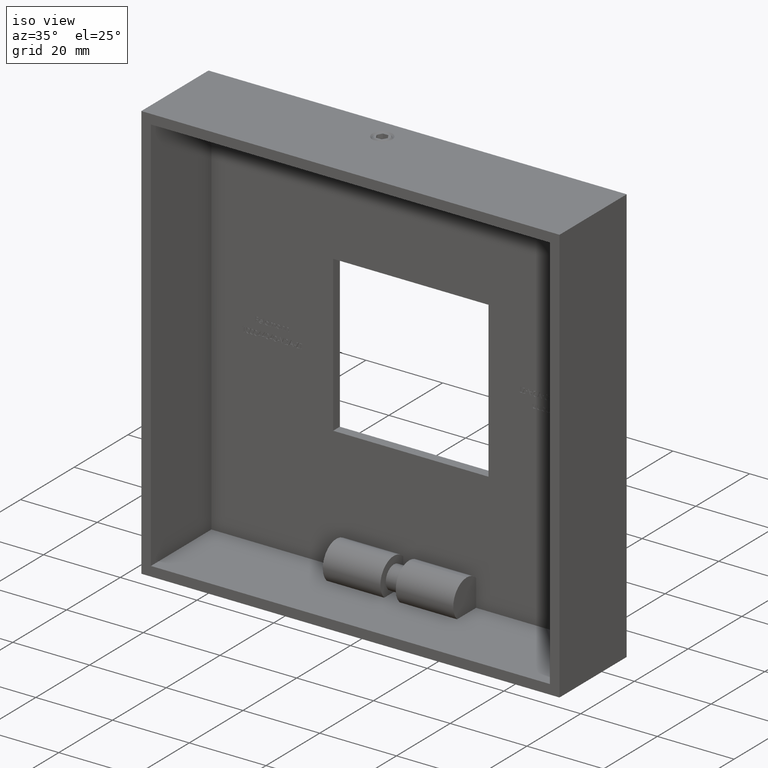
[diagram: clean part render]
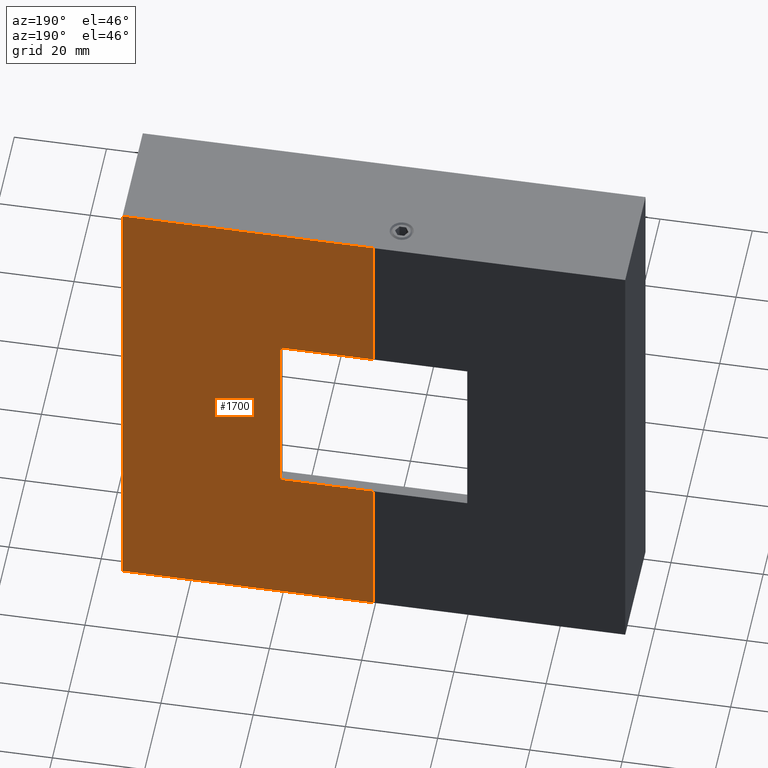
[diagram: tour spotlight — one face highlighted and labeled with its STEP entity id]
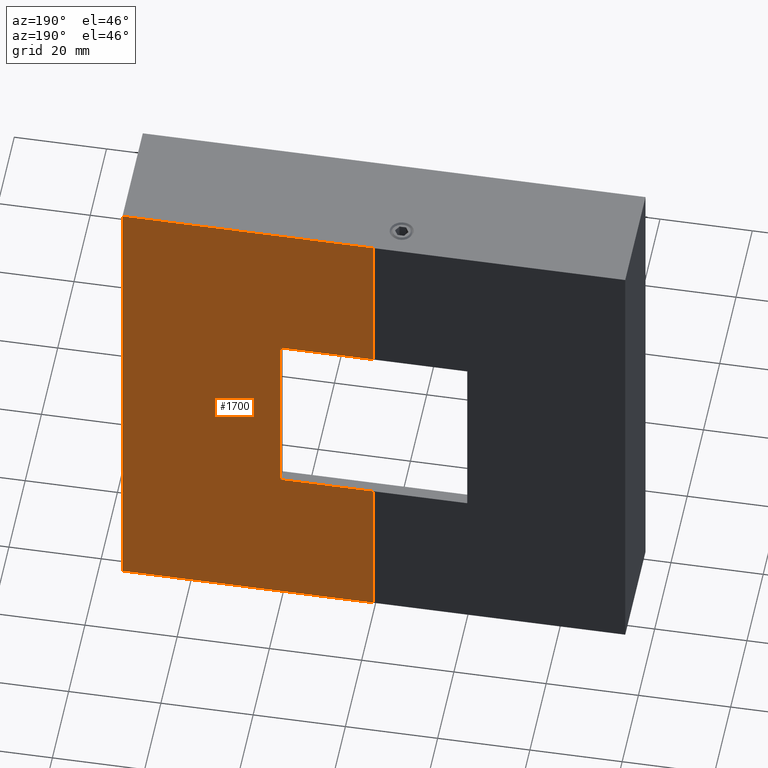
[diagram: tour spotlight — one face highlighted and labeled with its STEP entity id]
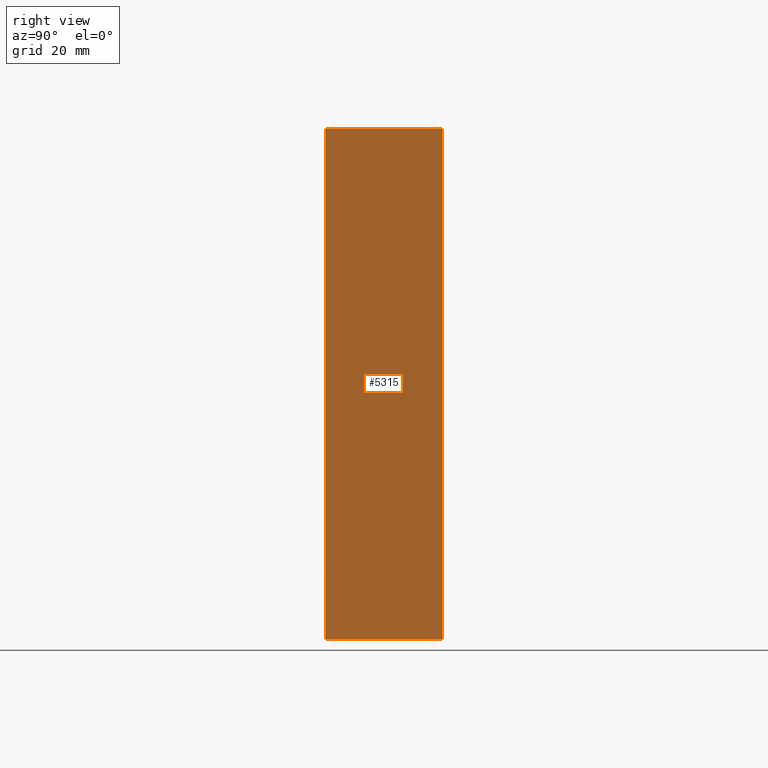
[diagram: tour spotlight — one face highlighted and labeled with its STEP entity id]
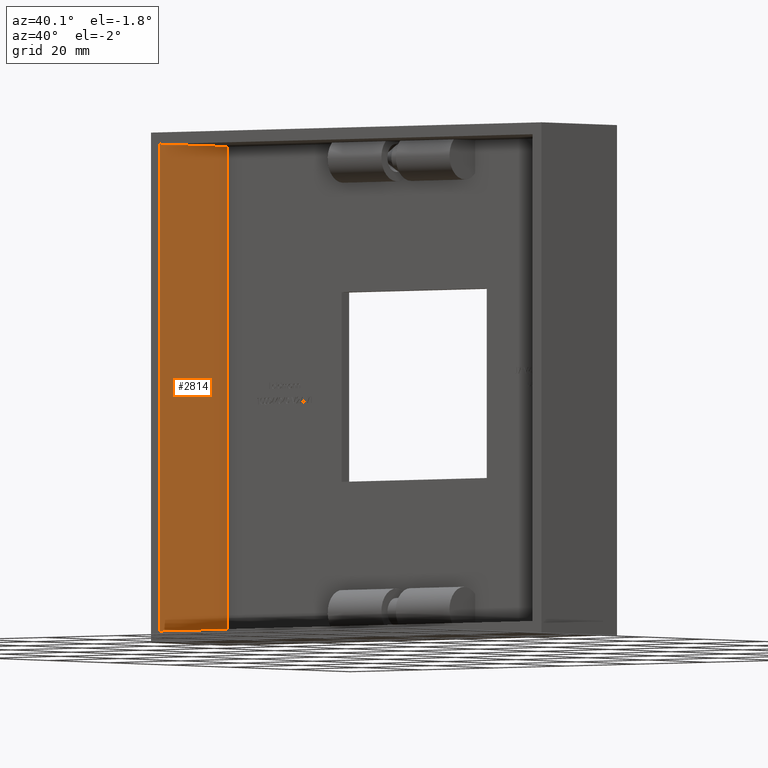
[diagram: tour spotlight — one face highlighted and labeled with its STEP entity id]
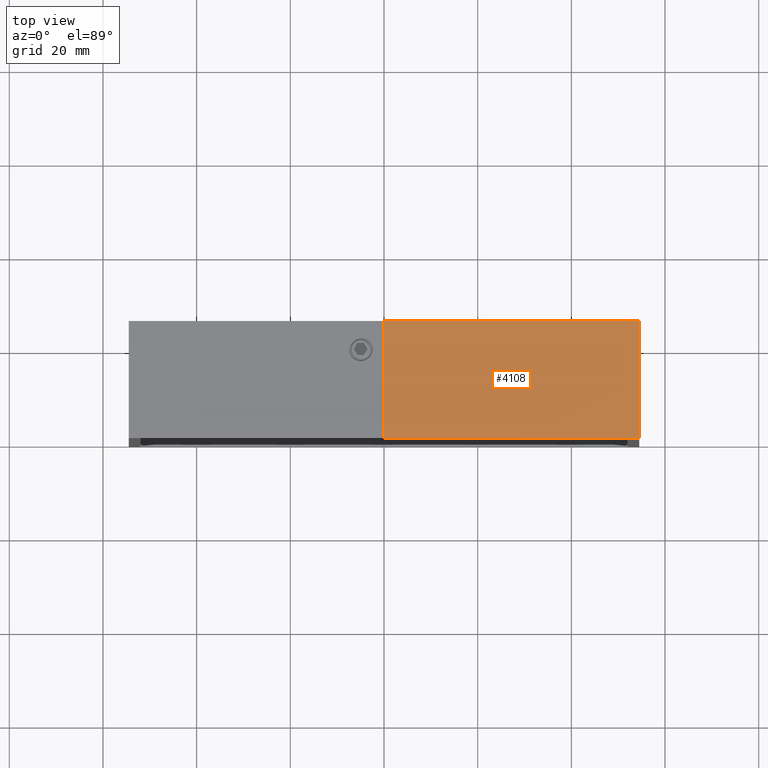
[diagram: tour spotlight — one face highlighted and labeled with its STEP entity id]
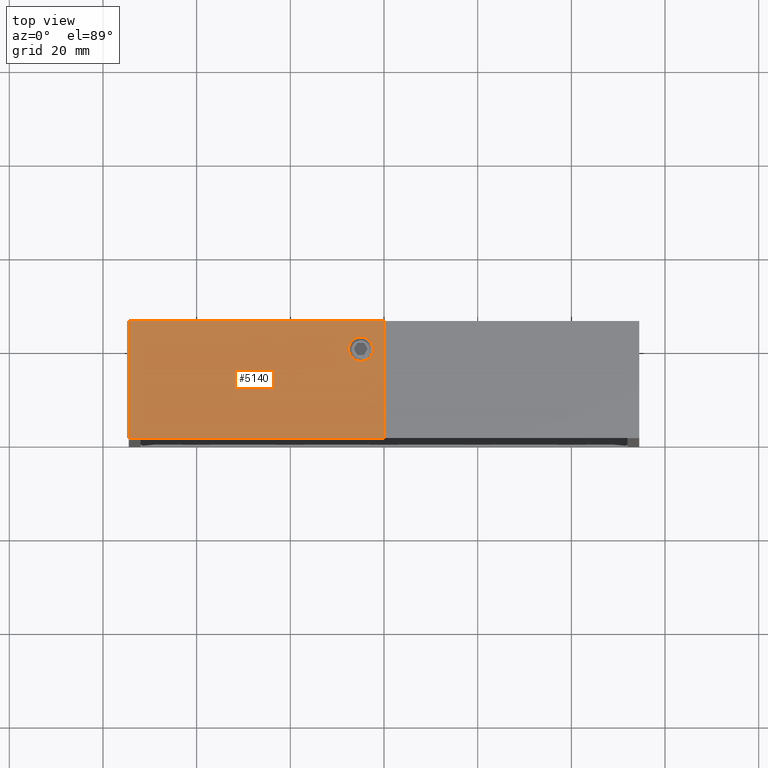
[diagram: tour spotlight — one face highlighted and labeled with its STEP entity id]
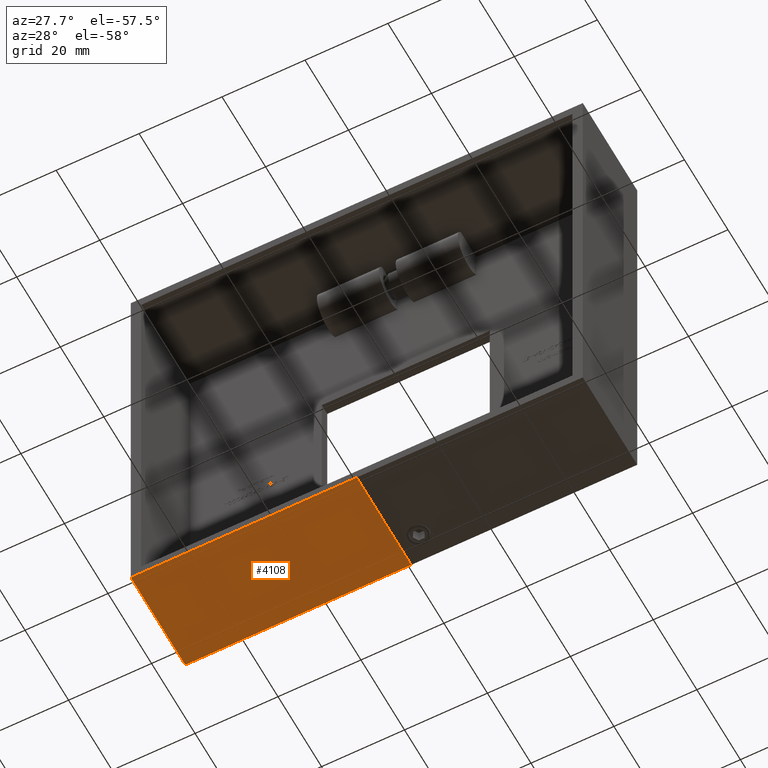
[diagram: tour spotlight — one face highlighted and labeled with its STEP entity id]
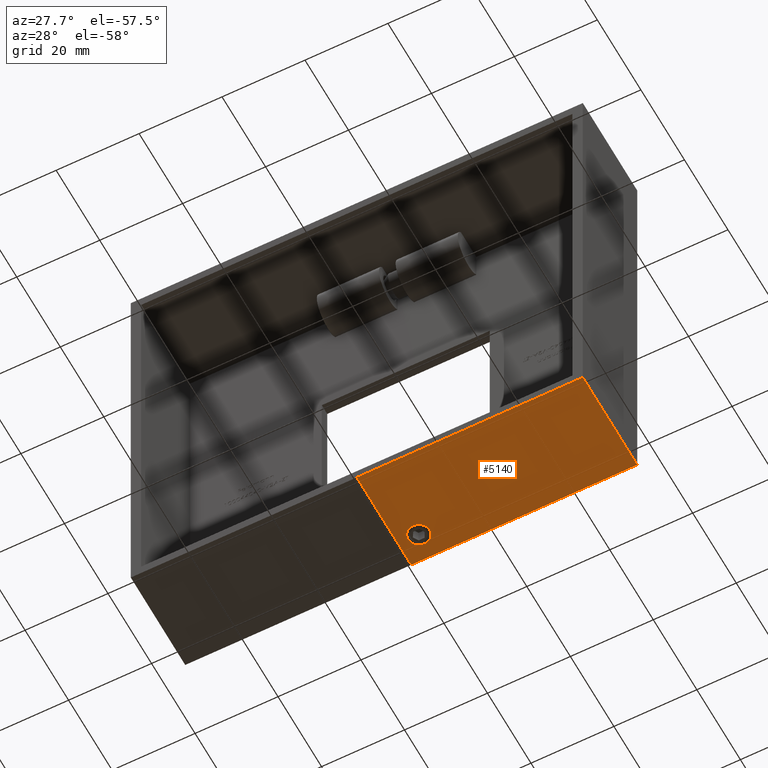
[diagram: tour spotlight — one face highlighted and labeled with its STEP entity id]
A machine part: a face-by-face anatomy tour. The part has 690 B-rep faces; the first image is the clean iso view, then the 8 largest visible faces are spotlighted one at a time (largest first), each with its STEP entity span.

Face 1 — auxiliary view, entity #1700. In plain terms, the highlighted planar face has unit normal (0, 1, 0).
Definition (entity closure, byte-faithful):
#919 = DIRECTION ( 'NONE',  ( -0.0000000000000000000, -0.0000000000000000000, 1.000000000000000000 ) ) ;
#1050 = LINE ( 'NONE', #5581, #15511 ) ;
#1548 = ORIENTED_EDGE ( 'NONE', *, *, #9338, .F. ) ;
#1700 = ADVANCED_FACE ( 'NONE', ( #14483 ), #12961, .T. ) ;
#1815 = EDGE_CURVE ( 'NONE', #2937, #14957, #13651, .T. ) ;
#1887 = EDGE_CURVE ( 'NONE', #8291, #8773, #1050, .T. ) ;
#2003 = CARTESIAN_POINT ( 'NONE',  ( 27.25000000000000700, 25.00000000000000000, 54.49999999999999300 ) ) ;
#2162 = VERTEX_POINT ( 'NONE', #4155 ) ;
#2281 = CARTESIAN_POINT ( 'NONE',  ( -27.24999999999999300, 25.00000000000000000, 54.49999999999999300 ) ) ;
#2524 = EDGE_LOOP ( 'NONE', ( #1548, #12939, #3815, #11636, #6954, #3567, #9335, #16981 ) ) ;
#2587 = CARTESIAN_POINT ( 'NONE',  ( -27.24999999999999300, 25.00000000000000000, 54.49999999999999300 ) ) ;
#2906 = VECTOR ( 'NONE', #12030, 1000.000000000000000 ) ;
#2937 = VERTEX_POINT ( 'NONE', #2281 ) ;
#3405 = CARTESIAN_POINT ( 'NONE',  ( 7.000000000000009800, 25.00000000000000000, 20.25000000000000400 ) ) ;
#3567 = ORIENTED_EDGE ( 'NONE', *, *, #7833, .T. ) ;
#3584 = DIRECTION ( 'NONE',  ( 0.0000000000000000000, 1.000000000000000000, 0.0000000000000000000 ) ) ;
#3628 = DIRECTION ( 'NONE',  ( -1.273191542001326800E-016, -0.0000000000000000000, -1.000000000000000000 ) ) ;
#3751 = LINE ( 'NONE', #12890, #7096 ) ;
#3812 = DIRECTION ( 'NONE',  ( 0.0000000000000000000, -0.0000000000000000000, 1.000000000000000000 ) ) ;
#3815 = ORIENTED_EDGE ( 'NONE', *, *, #1887, .T. ) ;
#4155 = CARTESIAN_POINT ( 'NONE',  ( 27.25000000000000700, 25.00000000000000000, -20.25000000000000400 ) ) ;
#4168 = CARTESIAN_POINT ( 'NONE',  ( 47.50000000000001400, 25.00000000000000000, -20.25000000000000400 ) ) ;
#4745 = LINE ( 'NONE', #14289, #16548 ) ;
#4852 = DIRECTION ( 'NONE',  ( 1.000000000000000000, -0.0000000000000000000, -1.713307136767216600E-016 ) ) ;
#5384 = AXIS2_PLACEMENT_3D ( 'NONE', #11706, #3584, #3812 ) ;
#5581 = CARTESIAN_POINT ( 'NONE',  ( -27.25000000000000700, 25.00000000000000000, -54.50000000000000000 ) ) ;
#6442 = DIRECTION ( 'NONE',  ( 1.000000000000000000, 0.0000000000000000000, 0.0000000000000000000 ) ) ;
#6954 = ORIENTED_EDGE ( 'NONE', *, *, #1815, .T. ) ;
#7096 = VECTOR ( 'NONE', #3628, 1000.000000000000000 ) ;
#7652 = LINE ( 'NONE', #4168, #10367 ) ;
#7833 = EDGE_CURVE ( 'NONE', #14957, #10366, #3751, .T. ) ;
#8226 = EDGE_CURVE ( 'NONE', #15180, #10366, #8517, .T. ) ;
#8291 = VERTEX_POINT ( 'NONE', #15778 ) ;
#8517 = LINE ( 'NONE', #8898, #16588 ) ;
#8773 = VERTEX_POINT ( 'NONE', #12591 ) ;
#8898 = CARTESIAN_POINT ( 'NONE',  ( 47.50000000000001400, 25.00000000000000000, 20.24999999999999600 ) ) ;
#9335 = ORIENTED_EDGE ( 'NONE', *, *, #8226, .F. ) ;
#9338 = EDGE_CURVE ( 'NONE', #2162, #16205, #7652, .T. ) ;
#9575 = DIRECTION ( 'NONE',  ( -1.000000000000000000, 0.0000000000000000000, 0.0000000000000000000 ) ) ;
#9595 = CARTESIAN_POINT ( 'NONE',  ( 27.25000000000000700, 25.00000000000000000, 20.25000000000000000 ) ) ;
#10144 = CARTESIAN_POINT ( 'NONE',  ( 27.24999999999999300, 25.00000000000000000, -54.50000000000000000 ) ) ;
#10165 = VECTOR ( 'NONE', #6442, 1000.000000000000000 ) ;
#10366 = VERTEX_POINT ( 'NONE', #9595 ) ;
#10367 = VECTOR ( 'NONE', #9575, 1000.000000000000000 ) ;
#11371 = LINE ( 'NONE', #10144, #14452 ) ;
#11636 = ORIENTED_EDGE ( 'NONE', *, *, #13784, .T. ) ;
#11706 = CARTESIAN_POINT ( 'NONE',  ( 0.0000000000000000000, 25.00000000000000000, 0.0000000000000000000 ) ) ;
#12030 = DIRECTION ( 'NONE',  ( 1.273191542001326800E-016, 0.0000000000000000000, 1.000000000000000000 ) ) ;
#12591 = CARTESIAN_POINT ( 'NONE',  ( -27.25000000000000700, 25.00000000000000000, -54.50000000000000000 ) ) ;
#12890 = CARTESIAN_POINT ( 'NONE',  ( 27.24999999999999300, 25.00000000000000000, -54.50000000000000000 ) ) ;
#12939 = ORIENTED_EDGE ( 'NONE', *, *, #15594, .T. ) ;
#12961 = PLANE ( 'NONE',  #5384 ) ;
#13436 = DIRECTION ( 'NONE',  ( -1.000000000000000000, -0.0000000000000000000, -0.0000000000000000000 ) ) ;
#13651 = LINE ( 'NONE', #2587, #10165 ) ;
#13784 = EDGE_CURVE ( 'NONE', #8773, #2937, #16367, .T. ) ;
#14279 = CARTESIAN_POINT ( 'NONE',  ( 7.000000000000009800, 25.00000000000000000, -20.25000000000000400 ) ) ;
#14289 = CARTESIAN_POINT ( 'NONE',  ( 7.000000000000009800, 25.00000000000000000, 20.25000000000000400 ) ) ;
#14312 = DIRECTION ( 'NONE',  ( -1.273191542001326800E-016, -0.0000000000000000000, -1.000000000000000000 ) ) ;
#14452 = VECTOR ( 'NONE', #14312, 1000.000000000000000 ) ;
#14483 = FACE_OUTER_BOUND ( 'NONE', #2524, .T. ) ;
#14957 = VERTEX_POINT ( 'NONE', #2003 ) ;
#15000 = EDGE_CURVE ( 'NONE', #16205, #15180, #4745, .T. ) ;
#15180 = VERTEX_POINT ( 'NONE', #3405 ) ;
#15511 = VECTOR ( 'NONE', #13436, 1000.000000000000000 ) ;
#15594 = EDGE_CURVE ( 'NONE', #2162, #8291, #11371, .T. ) ;
#15778 = CARTESIAN_POINT ( 'NONE',  ( 27.24999999999999300, 25.00000000000000000, -54.50000000000000000 ) ) ;
#15961 = CARTESIAN_POINT ( 'NONE',  ( -27.25000000000000700, 25.00000000000000000, -54.50000000000000000 ) ) ;
#16205 = VERTEX_POINT ( 'NONE', #14279 ) ;
#16367 = LINE ( 'NONE', #15961, #2906 ) ;
#16548 = VECTOR ( 'NONE', #919, 1000.000000000000000 ) ;
#16588 = VECTOR ( 'NONE', #4852, 1000.000000000000000 ) ;
#16981 = ORIENTED_EDGE ( 'NONE', *, *, #15000, .F. ) ;

Face 2 — auxiliary view, entity #1700. In plain terms, the highlighted planar face has unit normal (-0, 1, -0).
Definition (entity closure, byte-faithful):
#919 = DIRECTION ( 'NONE',  ( -0.0000000000000000000, -0.0000000000000000000, 1.000000000000000000 ) ) ;
#1050 = LINE ( 'NONE', #5581, #15511 ) ;
#1548 = ORIENTED_EDGE ( 'NONE', *, *, #9338, .F. ) ;
#1700 = ADVANCED_FACE ( 'NONE', ( #14483 ), #12961, .T. ) ;
#1815 = EDGE_CURVE ( 'NONE', #2937, #14957, #13651, .T. ) ;
#1887 = EDGE_CURVE ( 'NONE', #8291, #8773, #1050, .T. ) ;
#2003 = CARTESIAN_POINT ( 'NONE',  ( 27.25000000000000700, 25.00000000000000000, 54.49999999999999300 ) ) ;
#2162 = VERTEX_POINT ( 'NONE', #4155 ) ;
#2281 = CARTESIAN_POINT ( 'NONE',  ( -27.24999999999999300, 25.00000000000000000, 54.49999999999999300 ) ) ;
#2524 = EDGE_LOOP ( 'NONE', ( #1548, #12939, #3815, #11636, #6954, #3567, #9335, #16981 ) ) ;
#2587 = CARTESIAN_POINT ( 'NONE',  ( -27.24999999999999300, 25.00000000000000000, 54.49999999999999300 ) ) ;
#2906 = VECTOR ( 'NONE', #12030, 1000.000000000000000 ) ;
#2937 = VERTEX_POINT ( 'NONE', #2281 ) ;
#3405 = CARTESIAN_POINT ( 'NONE',  ( 7.000000000000009800, 25.00000000000000000, 20.25000000000000400 ) ) ;
#3567 = ORIENTED_EDGE ( 'NONE', *, *, #7833, .T. ) ;
#3584 = DIRECTION ( 'NONE',  ( 0.0000000000000000000, 1.000000000000000000, 0.0000000000000000000 ) ) ;
#3628 = DIRECTION ( 'NONE',  ( -1.273191542001326800E-016, -0.0000000000000000000, -1.000000000000000000 ) ) ;
#3751 = LINE ( 'NONE', #12890, #7096 ) ;
#3812 = DIRECTION ( 'NONE',  ( 0.0000000000000000000, -0.0000000000000000000, 1.000000000000000000 ) ) ;
#3815 = ORIENTED_EDGE ( 'NONE', *, *, #1887, .T. ) ;
#4155 = CARTESIAN_POINT ( 'NONE',  ( 27.25000000000000700, 25.00000000000000000, -20.25000000000000400 ) ) ;
#4168 = CARTESIAN_POINT ( 'NONE',  ( 47.50000000000001400, 25.00000000000000000, -20.25000000000000400 ) ) ;
#4745 = LINE ( 'NONE', #14289, #16548 ) ;
#4852 = DIRECTION ( 'NONE',  ( 1.000000000000000000, -0.0000000000000000000, -1.713307136767216600E-016 ) ) ;
#5384 = AXIS2_PLACEMENT_3D ( 'NONE', #11706, #3584, #3812 ) ;
#5581 = CARTESIAN_POINT ( 'NONE',  ( -27.25000000000000700, 25.00000000000000000, -54.50000000000000000 ) ) ;
#6442 = DIRECTION ( 'NONE',  ( 1.000000000000000000, 0.0000000000000000000, 0.0000000000000000000 ) ) ;
#6954 = ORIENTED_EDGE ( 'NONE', *, *, #1815, .T. ) ;
#7096 = VECTOR ( 'NONE', #3628, 1000.000000000000000 ) ;
#7652 = LINE ( 'NONE', #4168, #10367 ) ;
#7833 = EDGE_CURVE ( 'NONE', #14957, #10366, #3751, .T. ) ;
#8226 = EDGE_CURVE ( 'NONE', #15180, #10366, #8517, .T. ) ;
#8291 = VERTEX_POINT ( 'NONE', #15778 ) ;
#8517 = LINE ( 'NONE', #8898, #16588 ) ;
#8773 = VERTEX_POINT ( 'NONE', #12591 ) ;
#8898 = CARTESIAN_POINT ( 'NONE',  ( 47.50000000000001400, 25.00000000000000000, 20.24999999999999600 ) ) ;
#9335 = ORIENTED_EDGE ( 'NONE', *, *, #8226, .F. ) ;
#9338 = EDGE_CURVE ( 'NONE', #2162, #16205, #7652, .T. ) ;
#9575 = DIRECTION ( 'NONE',  ( -1.000000000000000000, 0.0000000000000000000, 0.0000000000000000000 ) ) ;
#9595 = CARTESIAN_POINT ( 'NONE',  ( 27.25000000000000700, 25.00000000000000000, 20.25000000000000000 ) ) ;
#10144 = CARTESIAN_POINT ( 'NONE',  ( 27.24999999999999300, 25.00000000000000000, -54.50000000000000000 ) ) ;
#10165 = VECTOR ( 'NONE', #6442, 1000.000000000000000 ) ;
#10366 = VERTEX_POINT ( 'NONE', #9595 ) ;
#10367 = VECTOR ( 'NONE', #9575, 1000.000000000000000 ) ;
#11371 = LINE ( 'NONE', #10144, #14452 ) ;
#11636 = ORIENTED_EDGE ( 'NONE', *, *, #13784, .T. ) ;
#11706 = CARTESIAN_POINT ( 'NONE',  ( 0.0000000000000000000, 25.00000000000000000, 0.0000000000000000000 ) ) ;
#12030 = DIRECTION ( 'NONE',  ( 1.273191542001326800E-016, 0.0000000000000000000, 1.000000000000000000 ) ) ;
#12591 = CARTESIAN_POINT ( 'NONE',  ( -27.25000000000000700, 25.00000000000000000, -54.50000000000000000 ) ) ;
#12890 = CARTESIAN_POINT ( 'NONE',  ( 27.24999999999999300, 25.00000000000000000, -54.50000000000000000 ) ) ;
#12939 = ORIENTED_EDGE ( 'NONE', *, *, #15594, .T. ) ;
#12961 = PLANE ( 'NONE',  #5384 ) ;
#13436 = DIRECTION ( 'NONE',  ( -1.000000000000000000, -0.0000000000000000000, -0.0000000000000000000 ) ) ;
#13651 = LINE ( 'NONE', #2587, #10165 ) ;
#13784 = EDGE_CURVE ( 'NONE', #8773, #2937, #16367, .T. ) ;
#14279 = CARTESIAN_POINT ( 'NONE',  ( 7.000000000000009800, 25.00000000000000000, -20.25000000000000400 ) ) ;
#14289 = CARTESIAN_POINT ( 'NONE',  ( 7.000000000000009800, 25.00000000000000000, 20.25000000000000400 ) ) ;
#14312 = DIRECTION ( 'NONE',  ( -1.273191542001326800E-016, -0.0000000000000000000, -1.000000000000000000 ) ) ;
#14452 = VECTOR ( 'NONE', #14312, 1000.000000000000000 ) ;
#14483 = FACE_OUTER_BOUND ( 'NONE', #2524, .T. ) ;
#14957 = VERTEX_POINT ( 'NONE', #2003 ) ;
#15000 = EDGE_CURVE ( 'NONE', #16205, #15180, #4745, .T. ) ;
#15180 = VERTEX_POINT ( 'NONE', #3405 ) ;
#15511 = VECTOR ( 'NONE', #13436, 1000.000000000000000 ) ;
#15594 = EDGE_CURVE ( 'NONE', #2162, #8291, #11371, .T. ) ;
#15778 = CARTESIAN_POINT ( 'NONE',  ( 27.24999999999999300, 25.00000000000000000, -54.50000000000000000 ) ) ;
#15961 = CARTESIAN_POINT ( 'NONE',  ( -27.25000000000000700, 25.00000000000000000, -54.50000000000000000 ) ) ;
#16205 = VERTEX_POINT ( 'NONE', #14279 ) ;
#16367 = LINE ( 'NONE', #15961, #2906 ) ;
#16548 = VECTOR ( 'NONE', #919, 1000.000000000000000 ) ;
#16588 = VECTOR ( 'NONE', #4852, 1000.000000000000000 ) ;
#16981 = ORIENTED_EDGE ( 'NONE', *, *, #15000, .F. ) ;

Face 3 — right view, entity #5315. In plain terms, the highlighted planar face has unit normal (-1, -0, 0).
Definition (entity closure, byte-faithful):
#83 = LINE ( 'NONE', #13660, #13674 ) ;
#1030 = VECTOR ( 'NONE', #10133, 1000.000000000000000 ) ;
#2224 = VECTOR ( 'NONE', #5143, 1000.000000000000000 ) ;
#2281 = CARTESIAN_POINT ( 'NONE',  ( -27.24999999999999300, 25.00000000000000000, 54.49999999999999300 ) ) ;
#2906 = VECTOR ( 'NONE', #12030, 1000.000000000000000 ) ;
#2937 = VERTEX_POINT ( 'NONE', #2281 ) ;
#2944 = ORIENTED_EDGE ( 'NONE', *, *, #10541, .F. ) ;
#3865 = LINE ( 'NONE', #17038, #2224 ) ;
#4374 = PLANE ( 'NONE',  #11191 ) ;
#4635 = ORIENTED_EDGE ( 'NONE', *, *, #10156, .T. ) ;
#5143 = DIRECTION ( 'NONE',  ( 1.273191542001326800E-016, 0.0000000000000000000, 1.000000000000000000 ) ) ;
#5315 = ADVANCED_FACE ( 'NONE', ( #5496 ), #4374, .F. ) ;
#5496 = FACE_OUTER_BOUND ( 'NONE', #6187, .T. ) ;
#6187 = EDGE_LOOP ( 'NONE', ( #9819, #2944, #12181, #4635 ) ) ;
#6345 = CARTESIAN_POINT ( 'NONE',  ( -27.24999999999999300, 0.0000000000000000000, 54.49999999999999300 ) ) ;
#7045 = DIRECTION ( 'NONE',  ( -1.273191542001326800E-016, 0.0000000000000000000, -1.000000000000000000 ) ) ;
#7656 = CARTESIAN_POINT ( 'NONE',  ( -27.25000000000000700, 25.00000000000000000, -54.50000000000000000 ) ) ;
#8773 = VERTEX_POINT ( 'NONE', #12591 ) ;
#9819 = ORIENTED_EDGE ( 'NONE', *, *, #16558, .T. ) ;
#9950 = LINE ( 'NONE', #7656, #1030 ) ;
#10133 = DIRECTION ( 'NONE',  ( -0.0000000000000000000, -1.000000000000000000, -0.0000000000000000000 ) ) ;
#10156 = EDGE_CURVE ( 'NONE', #8773, #13845, #9950, .T. ) ;
#10541 = EDGE_CURVE ( 'NONE', #2937, #11331, #83, .T. ) ;
#11191 = AXIS2_PLACEMENT_3D ( 'NONE', #16458, #13738, #7045 ) ;
#11331 = VERTEX_POINT ( 'NONE', #6345 ) ;
#12030 = DIRECTION ( 'NONE',  ( 1.273191542001326800E-016, 0.0000000000000000000, 1.000000000000000000 ) ) ;
#12181 = ORIENTED_EDGE ( 'NONE', *, *, #13784, .F. ) ;
#12591 = CARTESIAN_POINT ( 'NONE',  ( -27.25000000000000700, 25.00000000000000000, -54.50000000000000000 ) ) ;
#13660 = CARTESIAN_POINT ( 'NONE',  ( -27.24999999999999300, 25.00000000000000000, 54.49999999999999300 ) ) ;
#13674 = VECTOR ( 'NONE', #16335, 1000.000000000000000 ) ;
#13738 = DIRECTION ( 'NONE',  ( 1.000000000000000000, 0.0000000000000000000, -1.273191542001326800E-016 ) ) ;
#13784 = EDGE_CURVE ( 'NONE', #8773, #2937, #16367, .T. ) ;
#13845 = VERTEX_POINT ( 'NONE', #15304 ) ;
#15304 = CARTESIAN_POINT ( 'NONE',  ( -27.25000000000000700, 0.0000000000000000000, -54.50000000000000000 ) ) ;
#15961 = CARTESIAN_POINT ( 'NONE',  ( -27.25000000000000700, 25.00000000000000000, -54.50000000000000000 ) ) ;
#16335 = DIRECTION ( 'NONE',  ( -0.0000000000000000000, -1.000000000000000000, -0.0000000000000000000 ) ) ;
#16367 = LINE ( 'NONE', #15961, #2906 ) ;
#16458 = CARTESIAN_POINT ( 'NONE',  ( -27.25000000000000700, 25.00000000000000000, -54.50000000000000000 ) ) ;
#16558 = EDGE_CURVE ( 'NONE', #13845, #11331, #3865, .T. ) ;
#17038 = CARTESIAN_POINT ( 'NONE',  ( -27.25000000000000700, 0.0000000000000000000, -54.50000000000000000 ) ) ;

Face 4 — auxiliary view, entity #2814. In plain terms, the highlighted planar face has unit normal (-1, 0, -0).
Definition (entity closure, byte-faithful):
#519 = VECTOR ( 'NONE', #5937, 1000.000000000000000 ) ;
#1227 = DIRECTION ( 'NONE',  ( -0.0000000000000000000, -1.000000000000000000, -0.0000000000000000000 ) ) ;
#1410 = EDGE_CURVE ( 'NONE', #1532, #12469, #6631, .T. ) ;
#1532 = VERTEX_POINT ( 'NONE', #5498 ) ;
#1621 = EDGE_LOOP ( 'NONE', ( #7744, #8373, #9356, #3339 ) ) ;
#1802 = CARTESIAN_POINT ( 'NONE',  ( -24.75000000000000400, 141.2755348299890600, -4.128308272156344700E-015 ) ) ;
#1927 = LINE ( 'NONE', #6897, #13082 ) ;
#2670 = CARTESIAN_POINT ( 'NONE',  ( -24.75000000000001100, 22.50000000000000700, 51.99999999999998600 ) ) ;
#2814 = ADVANCED_FACE ( 'NONE', ( #15995 ), #5726, .F. ) ;
#3339 = ORIENTED_EDGE ( 'NONE', *, *, #12995, .F. ) ;
#3937 = VECTOR ( 'NONE', #15209, 1000.000000000000000 ) ;
#4162 = CARTESIAN_POINT ( 'NONE',  ( -24.75000000000001100, 0.0000000000000000000, 51.99999999999998600 ) ) ;
#4423 = VERTEX_POINT ( 'NONE', #2670 ) ;
#5498 = CARTESIAN_POINT ( 'NONE',  ( -24.74999999999999300, 22.50000000000000700, -52.00000000000000700 ) ) ;
#5621 = DIRECTION ( 'NONE',  ( -0.0000000000000000000, -1.000000000000000000, -0.0000000000000000000 ) ) ;
#5726 = PLANE ( 'NONE',  #8136 ) ;
#5937 = DIRECTION ( 'NONE',  ( 1.668003342285391600E-016, 0.0000000000000000000, -1.000000000000000000 ) ) ;
#6406 = CARTESIAN_POINT ( 'NONE',  ( -24.74999999999999300, 141.2755348299890600, -52.00000000000000700 ) ) ;
#6631 = LINE ( 'NONE', #6406, #7460 ) ;
#6897 = CARTESIAN_POINT ( 'NONE',  ( -24.75000000000001100, 141.2755348299890600, 51.99999999999998600 ) ) ;
#7460 = VECTOR ( 'NONE', #1227, 1000.000000000000000 ) ;
#7477 = LINE ( 'NONE', #8436, #519 ) ;
#7744 = ORIENTED_EDGE ( 'NONE', *, *, #12396, .T. ) ;
#8015 = VERTEX_POINT ( 'NONE', #4162 ) ;
#8136 = AXIS2_PLACEMENT_3D ( 'NONE', #1802, #11070, #9791 ) ;
#8373 = ORIENTED_EDGE ( 'NONE', *, *, #8853, .T. ) ;
#8436 = CARTESIAN_POINT ( 'NONE',  ( -24.75000000000000400, 22.50000000000000700, -4.128308272156344700E-015 ) ) ;
#8505 = LINE ( 'NONE', #8614, #3937 ) ;
#8614 = CARTESIAN_POINT ( 'NONE',  ( -24.75000000000000400, -0.0000000000000000000, -4.128308272156344700E-015 ) ) ;
#8853 = EDGE_CURVE ( 'NONE', #8015, #12469, #8505, .T. ) ;
#9356 = ORIENTED_EDGE ( 'NONE', *, *, #1410, .F. ) ;
#9791 = DIRECTION ( 'NONE',  ( -1.668003342285391600E-016, 0.0000000000000000000, 1.000000000000000000 ) ) ;
#11070 = DIRECTION ( 'NONE',  ( -1.000000000000000000, 0.0000000000000000000, -1.668003342285391600E-016 ) ) ;
#12396 = EDGE_CURVE ( 'NONE', #4423, #8015, #1927, .T. ) ;
#12469 = VERTEX_POINT ( 'NONE', #13703 ) ;
#12995 = EDGE_CURVE ( 'NONE', #4423, #1532, #7477, .T. ) ;
#13082 = VECTOR ( 'NONE', #5621, 1000.000000000000000 ) ;
#13703 = CARTESIAN_POINT ( 'NONE',  ( -24.74999999999999300, 0.0000000000000000000, -52.00000000000000700 ) ) ;
#15209 = DIRECTION ( 'NONE',  ( 1.668003342285391600E-016, 0.0000000000000000000, -1.000000000000000000 ) ) ;
#15995 = FACE_OUTER_BOUND ( 'NONE', #1621, .T. ) ;

Face 5 — top view, entity #4108. In plain terms, the highlighted planar face has unit normal (0, -0, -1).
Definition (entity closure, byte-faithful):
#736 = VERTEX_POINT ( 'NONE', #3377 ) ;
#1030 = VECTOR ( 'NONE', #10133, 1000.000000000000000 ) ;
#1050 = LINE ( 'NONE', #5581, #15511 ) ;
#1887 = EDGE_CURVE ( 'NONE', #8291, #8773, #1050, .T. ) ;
#2394 = ORIENTED_EDGE ( 'NONE', *, *, #1887, .F. ) ;
#3377 = CARTESIAN_POINT ( 'NONE',  ( 27.24999999999999300, 0.0000000000000000000, -54.50000000000000000 ) ) ;
#3555 = DIRECTION ( 'NONE',  ( 1.000000000000000000, 0.0000000000000000000, -0.0000000000000000000 ) ) ;
#4108 = ADVANCED_FACE ( 'NONE', ( #10287 ), #9070, .F. ) ;
#4758 = CARTESIAN_POINT ( 'NONE',  ( 27.24999999999999300, 25.00000000000000000, -54.50000000000000000 ) ) ;
#5581 = CARTESIAN_POINT ( 'NONE',  ( -27.25000000000000700, 25.00000000000000000, -54.50000000000000000 ) ) ;
#6420 = LINE ( 'NONE', #8339, #12820 ) ;
#7656 = CARTESIAN_POINT ( 'NONE',  ( -27.25000000000000700, 25.00000000000000000, -54.50000000000000000 ) ) ;
#8215 = LINE ( 'NONE', #4758, #17098 ) ;
#8291 = VERTEX_POINT ( 'NONE', #15778 ) ;
#8339 = CARTESIAN_POINT ( 'NONE',  ( -27.25000000000000700, 0.0000000000000000000, -54.50000000000000000 ) ) ;
#8602 = AXIS2_PLACEMENT_3D ( 'NONE', #10419, #14251, #3555 ) ;
#8773 = VERTEX_POINT ( 'NONE', #12591 ) ;
#9070 = PLANE ( 'NONE',  #8602 ) ;
#9096 = EDGE_CURVE ( 'NONE', #736, #13845, #6420, .T. ) ;
#9506 = ORIENTED_EDGE ( 'NONE', *, *, #10742, .T. ) ;
#9950 = LINE ( 'NONE', #7656, #1030 ) ;
#10133 = DIRECTION ( 'NONE',  ( -0.0000000000000000000, -1.000000000000000000, -0.0000000000000000000 ) ) ;
#10156 = EDGE_CURVE ( 'NONE', #8773, #13845, #9950, .T. ) ;
#10287 = FACE_OUTER_BOUND ( 'NONE', #15009, .T. ) ;
#10419 = CARTESIAN_POINT ( 'NONE',  ( -27.25000000000000700, 25.00000000000000000, -54.50000000000000000 ) ) ;
#10742 = EDGE_CURVE ( 'NONE', #8291, #736, #8215, .T. ) ;
#12277 = DIRECTION ( 'NONE',  ( -1.000000000000000000, -0.0000000000000000000, -0.0000000000000000000 ) ) ;
#12591 = CARTESIAN_POINT ( 'NONE',  ( -27.25000000000000700, 25.00000000000000000, -54.50000000000000000 ) ) ;
#12820 = VECTOR ( 'NONE', #12277, 1000.000000000000000 ) ;
#13436 = DIRECTION ( 'NONE',  ( -1.000000000000000000, -0.0000000000000000000, -0.0000000000000000000 ) ) ;
#13845 = VERTEX_POINT ( 'NONE', #15304 ) ;
#14251 = DIRECTION ( 'NONE',  ( 0.0000000000000000000, 0.0000000000000000000, 1.000000000000000000 ) ) ;
#14486 = ORIENTED_EDGE ( 'NONE', *, *, #9096, .T. ) ;
#14939 = ORIENTED_EDGE ( 'NONE', *, *, #10156, .F. ) ;
#15009 = EDGE_LOOP ( 'NONE', ( #14486, #14939, #2394, #9506 ) ) ;
#15304 = CARTESIAN_POINT ( 'NONE',  ( -27.25000000000000700, 0.0000000000000000000, -54.50000000000000000 ) ) ;
#15511 = VECTOR ( 'NONE', #13436, 1000.000000000000000 ) ;
#15778 = CARTESIAN_POINT ( 'NONE',  ( 27.24999999999999300, 25.00000000000000000, -54.50000000000000000 ) ) ;
#16723 = DIRECTION ( 'NONE',  ( -0.0000000000000000000, -1.000000000000000000, -0.0000000000000000000 ) ) ;
#17098 = VECTOR ( 'NONE', #16723, 1000.000000000000000 ) ;

Face 6 — top view, entity #5140. In plain terms, the highlighted planar face has unit normal (0, 0, -1).
Definition (entity closure, byte-faithful):
#83 = LINE ( 'NONE', #13660, #13674 ) ;
#318 = EDGE_LOOP ( 'NONE', ( #15186, #1125, #1264, #2320 ) ) ;
#351 = DIRECTION ( 'NONE',  ( -1.000000000000000000, 0.0000000000000000000, 0.0000000000000000000 ) ) ;
#1125 = ORIENTED_EDGE ( 'NONE', *, *, #9147, .F. ) ;
#1195 = AXIS2_PLACEMENT_3D ( 'NONE', #5559, #8210, #351 ) ;
#1264 = ORIENTED_EDGE ( 'NONE', *, *, #1815, .F. ) ;
#1815 = EDGE_CURVE ( 'NONE', #2937, #14957, #13651, .T. ) ;
#2003 = CARTESIAN_POINT ( 'NONE',  ( 27.25000000000000700, 25.00000000000000000, 54.49999999999999300 ) ) ;
#2238 = CARTESIAN_POINT ( 'NONE',  ( 22.25000000000001100, 19.00000000000000400, 54.49999999999999300 ) ) ;
#2281 = CARTESIAN_POINT ( 'NONE',  ( -27.24999999999999300, 25.00000000000000000, 54.49999999999999300 ) ) ;
#2320 = ORIENTED_EDGE ( 'NONE', *, *, #10541, .T. ) ;
#2587 = CARTESIAN_POINT ( 'NONE',  ( -27.24999999999999300, 25.00000000000000000, 54.49999999999999300 ) ) ;
#2853 = CARTESIAN_POINT ( 'NONE',  ( -27.24999999999999300, 0.0000000000000000000, 54.49999999999999300 ) ) ;
#2937 = VERTEX_POINT ( 'NONE', #2281 ) ;
#3606 = DIRECTION ( 'NONE',  ( -1.000000000000000000, 0.0000000000000000000, 0.0000000000000000000 ) ) ;
#4022 = PLANE ( 'NONE',  #12919 ) ;
#4565 = CARTESIAN_POINT ( 'NONE',  ( 27.25000000000000700, 25.00000000000000000, 54.49999999999999300 ) ) ;
#5140 = ADVANCED_FACE ( 'NONE', ( #5281, #16058 ), #4022, .F. ) ;
#5281 = FACE_BOUND ( 'NONE', #15882, .T. ) ;
#5461 = DIRECTION ( 'NONE',  ( 1.000000000000000000, 0.0000000000000000000, 0.0000000000000000000 ) ) ;
#5559 = CARTESIAN_POINT ( 'NONE',  ( 22.25000000000001100, 19.00000000000000400, 54.49999999999999300 ) ) ;
#5774 = VERTEX_POINT ( 'NONE', #12512 ) ;
#5809 = LINE ( 'NONE', #4565, #14075 ) ;
#5825 = AXIS2_PLACEMENT_3D ( 'NONE', #2238, #8895, #3606 ) ;
#6345 = CARTESIAN_POINT ( 'NONE',  ( -27.24999999999999300, 0.0000000000000000000, 54.49999999999999300 ) ) ;
#6442 = DIRECTION ( 'NONE',  ( 1.000000000000000000, 0.0000000000000000000, 0.0000000000000000000 ) ) ;
#6688 = CARTESIAN_POINT ( 'NONE',  ( -27.24999999999999300, 25.00000000000000000, 54.49999999999999300 ) ) ;
#6955 = DIRECTION ( 'NONE',  ( -0.0000000000000000000, -1.000000000000000000, -0.0000000000000000000 ) ) ;
#8210 = DIRECTION ( 'NONE',  ( 0.0000000000000000000, 0.0000000000000000000, -1.000000000000000000 ) ) ;
#8424 = CIRCLE ( 'NONE', #1195, 2.599999999999977400 ) ;
#8564 = VERTEX_POINT ( 'NONE', #9499 ) ;
#8895 = DIRECTION ( 'NONE',  ( 0.0000000000000000000, 0.0000000000000000000, -1.000000000000000000 ) ) ;
#9126 = DIRECTION ( 'NONE',  ( -1.000000000000000000, 0.0000000000000000000, -0.0000000000000000000 ) ) ;
#9147 = EDGE_CURVE ( 'NONE', #14957, #8564, #5809, .T. ) ;
#9182 = VECTOR ( 'NONE', #5461, 1000.000000000000000 ) ;
#9191 = DIRECTION ( 'NONE',  ( 0.0000000000000000000, 0.0000000000000000000, -1.000000000000000000 ) ) ;
#9499 = CARTESIAN_POINT ( 'NONE',  ( 27.25000000000000700, 0.0000000000000000000, 54.49999999999999300 ) ) ;
#9560 = ORIENTED_EDGE ( 'NONE', *, *, #11000, .T. ) ;
#9628 = EDGE_CURVE ( 'NONE', #5774, #12541, #10789, .T. ) ;
#10165 = VECTOR ( 'NONE', #6442, 1000.000000000000000 ) ;
#10541 = EDGE_CURVE ( 'NONE', #2937, #11331, #83, .T. ) ;
#10789 = CIRCLE ( 'NONE', #5825, 2.599999999999977400 ) ;
#11000 = EDGE_CURVE ( 'NONE', #12541, #5774, #8424, .T. ) ;
#11331 = VERTEX_POINT ( 'NONE', #6345 ) ;
#11764 = EDGE_CURVE ( 'NONE', #11331, #8564, #16628, .T. ) ;
#12417 = ORIENTED_EDGE ( 'NONE', *, *, #9628, .T. ) ;
#12512 = CARTESIAN_POINT ( 'NONE',  ( 24.84999999999998700, 19.00000000000000400, 54.49999999999999300 ) ) ;
#12541 = VERTEX_POINT ( 'NONE', #16268 ) ;
#12919 = AXIS2_PLACEMENT_3D ( 'NONE', #6688, #9191, #9126 ) ;
#13651 = LINE ( 'NONE', #2587, #10165 ) ;
#13660 = CARTESIAN_POINT ( 'NONE',  ( -27.24999999999999300, 25.00000000000000000, 54.49999999999999300 ) ) ;
#13674 = VECTOR ( 'NONE', #16335, 1000.000000000000000 ) ;
#14075 = VECTOR ( 'NONE', #6955, 1000.000000000000000 ) ;
#14957 = VERTEX_POINT ( 'NONE', #2003 ) ;
#15186 = ORIENTED_EDGE ( 'NONE', *, *, #11764, .T. ) ;
#15882 = EDGE_LOOP ( 'NONE', ( #12417, #9560 ) ) ;
#16058 = FACE_OUTER_BOUND ( 'NONE', #318, .T. ) ;
#16268 = CARTESIAN_POINT ( 'NONE',  ( 19.65000000000003100, 19.00000000000000400, 54.49999999999999300 ) ) ;
#16335 = DIRECTION ( 'NONE',  ( -0.0000000000000000000, -1.000000000000000000, -0.0000000000000000000 ) ) ;
#16628 = LINE ( 'NONE', #2853, #9182 ) ;

Face 7 — auxiliary view, entity #4108. In plain terms, the highlighted planar face has unit normal (0, 0, 1).
Definition (entity closure, byte-faithful):
#736 = VERTEX_POINT ( 'NONE', #3377 ) ;
#1030 = VECTOR ( 'NONE', #10133, 1000.000000000000000 ) ;
#1050 = LINE ( 'NONE', #5581, #15511 ) ;
#1887 = EDGE_CURVE ( 'NONE', #8291, #8773, #1050, .T. ) ;
#2394 = ORIENTED_EDGE ( 'NONE', *, *, #1887, .F. ) ;
#3377 = CARTESIAN_POINT ( 'NONE',  ( 27.24999999999999300, 0.0000000000000000000, -54.50000000000000000 ) ) ;
#3555 = DIRECTION ( 'NONE',  ( 1.000000000000000000, 0.0000000000000000000, -0.0000000000000000000 ) ) ;
#4108 = ADVANCED_FACE ( 'NONE', ( #10287 ), #9070, .F. ) ;
#4758 = CARTESIAN_POINT ( 'NONE',  ( 27.24999999999999300, 25.00000000000000000, -54.50000000000000000 ) ) ;
#5581 = CARTESIAN_POINT ( 'NONE',  ( -27.25000000000000700, 25.00000000000000000, -54.50000000000000000 ) ) ;
#6420 = LINE ( 'NONE', #8339, #12820 ) ;
#7656 = CARTESIAN_POINT ( 'NONE',  ( -27.25000000000000700, 25.00000000000000000, -54.50000000000000000 ) ) ;
#8215 = LINE ( 'NONE', #4758, #17098 ) ;
#8291 = VERTEX_POINT ( 'NONE', #15778 ) ;
#8339 = CARTESIAN_POINT ( 'NONE',  ( -27.25000000000000700, 0.0000000000000000000, -54.50000000000000000 ) ) ;
#8602 = AXIS2_PLACEMENT_3D ( 'NONE', #10419, #14251, #3555 ) ;
#8773 = VERTEX_POINT ( 'NONE', #12591 ) ;
#9070 = PLANE ( 'NONE',  #8602 ) ;
#9096 = EDGE_CURVE ( 'NONE', #736, #13845, #6420, .T. ) ;
#9506 = ORIENTED_EDGE ( 'NONE', *, *, #10742, .T. ) ;
#9950 = LINE ( 'NONE', #7656, #1030 ) ;
#10133 = DIRECTION ( 'NONE',  ( -0.0000000000000000000, -1.000000000000000000, -0.0000000000000000000 ) ) ;
#10156 = EDGE_CURVE ( 'NONE', #8773, #13845, #9950, .T. ) ;
#10287 = FACE_OUTER_BOUND ( 'NONE', #15009, .T. ) ;
#10419 = CARTESIAN_POINT ( 'NONE',  ( -27.25000000000000700, 25.00000000000000000, -54.50000000000000000 ) ) ;
#10742 = EDGE_CURVE ( 'NONE', #8291, #736, #8215, .T. ) ;
#12277 = DIRECTION ( 'NONE',  ( -1.000000000000000000, -0.0000000000000000000, -0.0000000000000000000 ) ) ;
#12591 = CARTESIAN_POINT ( 'NONE',  ( -27.25000000000000700, 25.00000000000000000, -54.50000000000000000 ) ) ;
#12820 = VECTOR ( 'NONE', #12277, 1000.000000000000000 ) ;
#13436 = DIRECTION ( 'NONE',  ( -1.000000000000000000, -0.0000000000000000000, -0.0000000000000000000 ) ) ;
#13845 = VERTEX_POINT ( 'NONE', #15304 ) ;
#14251 = DIRECTION ( 'NONE',  ( 0.0000000000000000000, 0.0000000000000000000, 1.000000000000000000 ) ) ;
#14486 = ORIENTED_EDGE ( 'NONE', *, *, #9096, .T. ) ;
#14939 = ORIENTED_EDGE ( 'NONE', *, *, #10156, .F. ) ;
#15009 = EDGE_LOOP ( 'NONE', ( #14486, #14939, #2394, #9506 ) ) ;
#15304 = CARTESIAN_POINT ( 'NONE',  ( -27.25000000000000700, 0.0000000000000000000, -54.50000000000000000 ) ) ;
#15511 = VECTOR ( 'NONE', #13436, 1000.000000000000000 ) ;
#15778 = CARTESIAN_POINT ( 'NONE',  ( 27.24999999999999300, 25.00000000000000000, -54.50000000000000000 ) ) ;
#16723 = DIRECTION ( 'NONE',  ( -0.0000000000000000000, -1.000000000000000000, -0.0000000000000000000 ) ) ;
#17098 = VECTOR ( 'NONE', #16723, 1000.000000000000000 ) ;

Face 8 — auxiliary view, entity #5140. In plain terms, the highlighted planar face has unit normal (-0, 0, 1).
Definition (entity closure, byte-faithful):
#83 = LINE ( 'NONE', #13660, #13674 ) ;
#318 = EDGE_LOOP ( 'NONE', ( #15186, #1125, #1264, #2320 ) ) ;
#351 = DIRECTION ( 'NONE',  ( -1.000000000000000000, 0.0000000000000000000, 0.0000000000000000000 ) ) ;
#1125 = ORIENTED_EDGE ( 'NONE', *, *, #9147, .F. ) ;
#1195 = AXIS2_PLACEMENT_3D ( 'NONE', #5559, #8210, #351 ) ;
#1264 = ORIENTED_EDGE ( 'NONE', *, *, #1815, .F. ) ;
#1815 = EDGE_CURVE ( 'NONE', #2937, #14957, #13651, .T. ) ;
#2003 = CARTESIAN_POINT ( 'NONE',  ( 27.25000000000000700, 25.00000000000000000, 54.49999999999999300 ) ) ;
#2238 = CARTESIAN_POINT ( 'NONE',  ( 22.25000000000001100, 19.00000000000000400, 54.49999999999999300 ) ) ;
#2281 = CARTESIAN_POINT ( 'NONE',  ( -27.24999999999999300, 25.00000000000000000, 54.49999999999999300 ) ) ;
#2320 = ORIENTED_EDGE ( 'NONE', *, *, #10541, .T. ) ;
#2587 = CARTESIAN_POINT ( 'NONE',  ( -27.24999999999999300, 25.00000000000000000, 54.49999999999999300 ) ) ;
#2853 = CARTESIAN_POINT ( 'NONE',  ( -27.24999999999999300, 0.0000000000000000000, 54.49999999999999300 ) ) ;
#2937 = VERTEX_POINT ( 'NONE', #2281 ) ;
#3606 = DIRECTION ( 'NONE',  ( -1.000000000000000000, 0.0000000000000000000, 0.0000000000000000000 ) ) ;
#4022 = PLANE ( 'NONE',  #12919 ) ;
#4565 = CARTESIAN_POINT ( 'NONE',  ( 27.25000000000000700, 25.00000000000000000, 54.49999999999999300 ) ) ;
#5140 = ADVANCED_FACE ( 'NONE', ( #5281, #16058 ), #4022, .F. ) ;
#5281 = FACE_BOUND ( 'NONE', #15882, .T. ) ;
#5461 = DIRECTION ( 'NONE',  ( 1.000000000000000000, 0.0000000000000000000, 0.0000000000000000000 ) ) ;
#5559 = CARTESIAN_POINT ( 'NONE',  ( 22.25000000000001100, 19.00000000000000400, 54.49999999999999300 ) ) ;
#5774 = VERTEX_POINT ( 'NONE', #12512 ) ;
#5809 = LINE ( 'NONE', #4565, #14075 ) ;
#5825 = AXIS2_PLACEMENT_3D ( 'NONE', #2238, #8895, #3606 ) ;
#6345 = CARTESIAN_POINT ( 'NONE',  ( -27.24999999999999300, 0.0000000000000000000, 54.49999999999999300 ) ) ;
#6442 = DIRECTION ( 'NONE',  ( 1.000000000000000000, 0.0000000000000000000, 0.0000000000000000000 ) ) ;
#6688 = CARTESIAN_POINT ( 'NONE',  ( -27.24999999999999300, 25.00000000000000000, 54.49999999999999300 ) ) ;
#6955 = DIRECTION ( 'NONE',  ( -0.0000000000000000000, -1.000000000000000000, -0.0000000000000000000 ) ) ;
#8210 = DIRECTION ( 'NONE',  ( 0.0000000000000000000, 0.0000000000000000000, -1.000000000000000000 ) ) ;
#8424 = CIRCLE ( 'NONE', #1195, 2.599999999999977400 ) ;
#8564 = VERTEX_POINT ( 'NONE', #9499 ) ;
#8895 = DIRECTION ( 'NONE',  ( 0.0000000000000000000, 0.0000000000000000000, -1.000000000000000000 ) ) ;
#9126 = DIRECTION ( 'NONE',  ( -1.000000000000000000, 0.0000000000000000000, -0.0000000000000000000 ) ) ;
#9147 = EDGE_CURVE ( 'NONE', #14957, #8564, #5809, .T. ) ;
#9182 = VECTOR ( 'NONE', #5461, 1000.000000000000000 ) ;
#9191 = DIRECTION ( 'NONE',  ( 0.0000000000000000000, 0.0000000000000000000, -1.000000000000000000 ) ) ;
#9499 = CARTESIAN_POINT ( 'NONE',  ( 27.25000000000000700, 0.0000000000000000000, 54.49999999999999300 ) ) ;
#9560 = ORIENTED_EDGE ( 'NONE', *, *, #11000, .T. ) ;
#9628 = EDGE_CURVE ( 'NONE', #5774, #12541, #10789, .T. ) ;
#10165 = VECTOR ( 'NONE', #6442, 1000.000000000000000 ) ;
#10541 = EDGE_CURVE ( 'NONE', #2937, #11331, #83, .T. ) ;
#10789 = CIRCLE ( 'NONE', #5825, 2.599999999999977400 ) ;
#11000 = EDGE_CURVE ( 'NONE', #12541, #5774, #8424, .T. ) ;
#11331 = VERTEX_POINT ( 'NONE', #6345 ) ;
#11764 = EDGE_CURVE ( 'NONE', #11331, #8564, #16628, .T. ) ;
#12417 = ORIENTED_EDGE ( 'NONE', *, *, #9628, .T. ) ;
#12512 = CARTESIAN_POINT ( 'NONE',  ( 24.84999999999998700, 19.00000000000000400, 54.49999999999999300 ) ) ;
#12541 = VERTEX_POINT ( 'NONE', #16268 ) ;
#12919 = AXIS2_PLACEMENT_3D ( 'NONE', #6688, #9191, #9126 ) ;
#13651 = LINE ( 'NONE', #2587, #10165 ) ;
#13660 = CARTESIAN_POINT ( 'NONE',  ( -27.24999999999999300, 25.00000000000000000, 54.49999999999999300 ) ) ;
#13674 = VECTOR ( 'NONE', #16335, 1000.000000000000000 ) ;
#14075 = VECTOR ( 'NONE', #6955, 1000.000000000000000 ) ;
#14957 = VERTEX_POINT ( 'NONE', #2003 ) ;
#15186 = ORIENTED_EDGE ( 'NONE', *, *, #11764, .T. ) ;
#15882 = EDGE_LOOP ( 'NONE', ( #12417, #9560 ) ) ;
#16058 = FACE_OUTER_BOUND ( 'NONE', #318, .T. ) ;
#16268 = CARTESIAN_POINT ( 'NONE',  ( 19.65000000000003100, 19.00000000000000400, 54.49999999999999300 ) ) ;
#16335 = DIRECTION ( 'NONE',  ( -0.0000000000000000000, -1.000000000000000000, -0.0000000000000000000 ) ) ;
#16628 = LINE ( 'NONE', #2853, #9182 ) ;